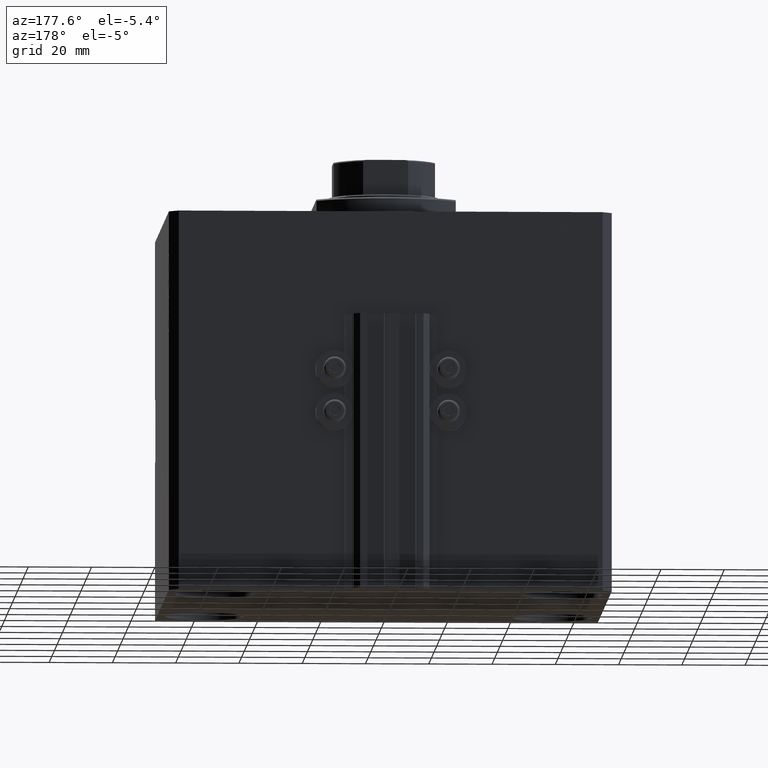
[diagram: clean part render]
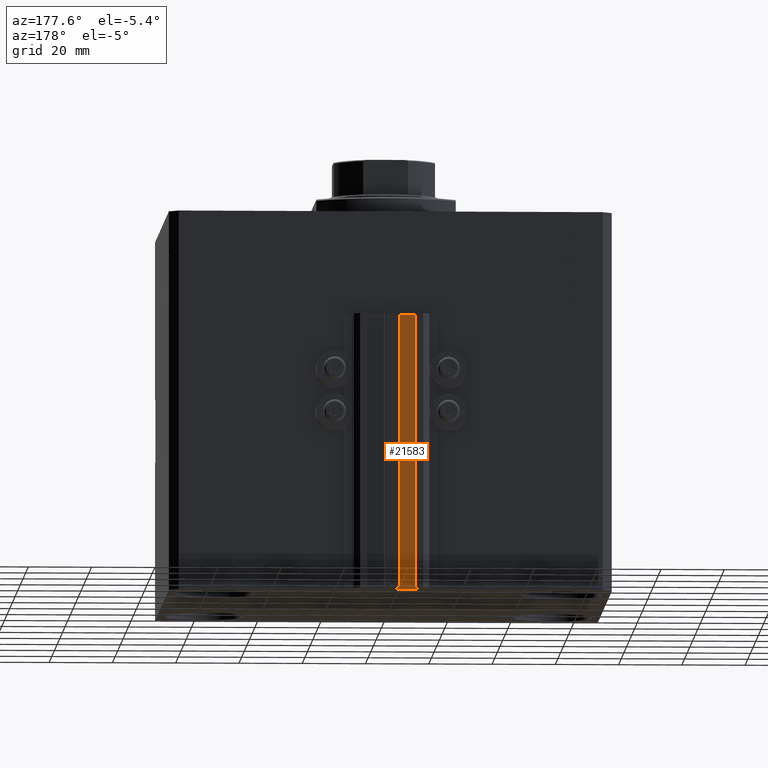
[diagram: same view with one face highlighted and labeled with its STEP entity id]
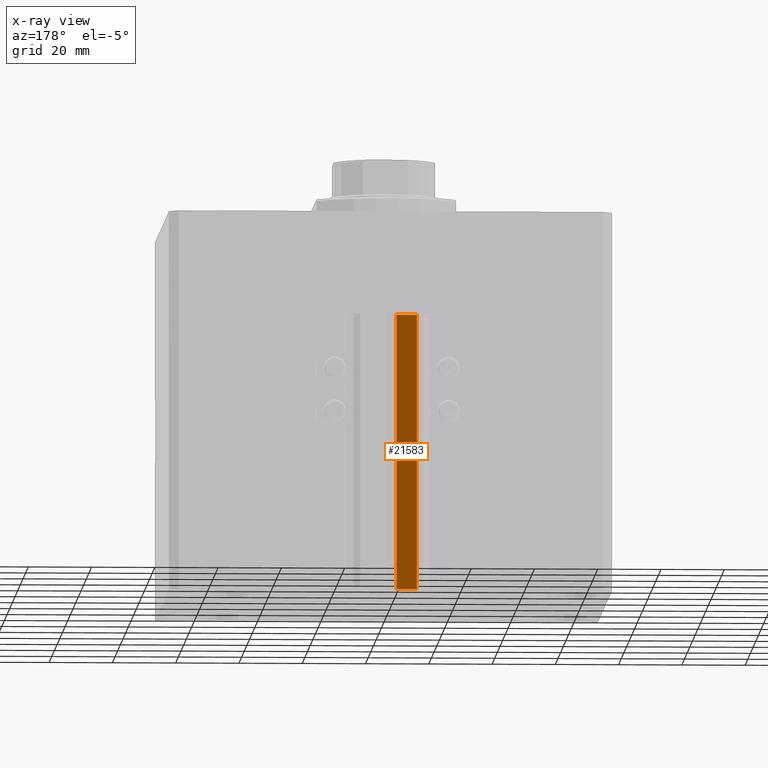
[diagram: x-ray of the same camera — body ghosted, the highlighted face saturated]
A machine part, auxiliary view. The second image highlights one B-rep face of the part: STEP entity #21583.
The next image is the same camera in x-ray: the body ghosted, the highlighted face saturated — about 0% of this face is hidden behind the body in this view.
In plain terms, the highlighted planar face has unit normal (0, 1, 0).
Its self-contained STEP definition (entity closure, byte-faithful):
#142 = CARTESIAN_POINT ( 'NONE',  ( -8.199999999999997513, 57.00000000000000000, -120.0000000000000000 ) ) ;
#2974 = LINE ( 'NONE', #10134, #27083 ) ;
#3598 = DIRECTION ( 'NONE',  ( 0.000000000000000000, 0.000000000000000000, 1.000000000000000000 ) ) ;
#3732 = CARTESIAN_POINT ( 'NONE',  ( -8.199999999999997513, 57.00000000000000000, -120.0000000000000000 ) ) ;
#4102 = VECTOR ( 'NONE', #47103, 1000.000000000000000 ) ;
#4155 = ORIENTED_EDGE ( 'NONE', *, *, #11206, .F. ) ;
#5126 = CARTESIAN_POINT ( 'NONE',  ( -8.199999999999997513, 57.00000000000000000, -33.00000000000000000 ) ) ;
#6572 = FACE_OUTER_BOUND ( 'NONE', #21330, .T. ) ;
#7296 = PLANE ( 'NONE',  #13121 ) ;
#7304 = EDGE_CURVE ( 'NONE', #41719, #17395, #28013, .T. ) ;
#8506 = LINE ( 'NONE', #142, #11771 ) ;
#9532 = ORIENTED_EDGE ( 'NONE', *, *, #7304, .T. ) ;
#9725 = DIRECTION ( 'NONE',  ( -1.000000000000000000, 0.000000000000000000, 0.000000000000000000 ) ) ;
#10134 = CARTESIAN_POINT ( 'NONE',  ( -1.800000000000000933, 57.00000000000000000, -33.00000000000000000 ) ) ;
#10524 = DIRECTION ( 'NONE',  ( 0.000000000000000000, 1.000000000000000000, -0.000000000000000000 ) ) ;
#11206 = EDGE_CURVE ( 'NONE', #41719, #18004, #39238, .T. ) ;
#11771 = VECTOR ( 'NONE', #15888, 1000.000000000000000 ) ;
#13121 = AXIS2_PLACEMENT_3D ( 'NONE', #25833, #10524, #3598 ) ;
#15888 = DIRECTION ( 'NONE',  ( 0.000000000000000000, 0.000000000000000000, 1.000000000000000000 ) ) ;
#16724 = CARTESIAN_POINT ( 'NONE',  ( -1.800000000000000933, 57.00000000000000000, -120.0000000000000000 ) ) ;
#17395 = VERTEX_POINT ( 'NONE', #3732 ) ;
#18004 = VERTEX_POINT ( 'NONE', #47347 ) ;
#21330 = EDGE_LOOP ( 'NONE', ( #46173, #4155, #9532, #47222 ) ) ;
#21583 = ADVANCED_FACE ( 'NONE', ( #6572 ), #7296, .T. ) ;
#25833 = CARTESIAN_POINT ( 'NONE',  ( -1.800000000000000933, 57.00000000000000000, -120.0000000000000000 ) ) ;
#27083 = VECTOR ( 'NONE', #28671, 1000.000000000000000 ) ;
#28013 = LINE ( 'NONE', #43798, #31813 ) ;
#28671 = DIRECTION ( 'NONE',  ( -1.000000000000000000, 0.000000000000000000, 0.000000000000000000 ) ) ;
#31813 = VECTOR ( 'NONE', #9725, 1000.000000000000000 ) ;
#32043 = EDGE_CURVE ( 'NONE', #17395, #39296, #8506, .T. ) ;
#36967 = CARTESIAN_POINT ( 'NONE',  ( -1.800000000000000933, 57.00000000000000000, -120.0000000000000000 ) ) ;
#39238 = LINE ( 'NONE', #16724, #4102 ) ;
#39296 = VERTEX_POINT ( 'NONE', #5126 ) ;
#41719 = VERTEX_POINT ( 'NONE', #36967 ) ;
#43798 = CARTESIAN_POINT ( 'NONE',  ( -1.800000000000000933, 57.00000000000000000, -120.0000000000000000 ) ) ;
#44573 = EDGE_CURVE ( 'NONE', #18004, #39296, #2974, .T. ) ;
#46173 = ORIENTED_EDGE ( 'NONE', *, *, #44573, .F. ) ;
#47103 = DIRECTION ( 'NONE',  ( 0.000000000000000000, 0.000000000000000000, 1.000000000000000000 ) ) ;
#47222 = ORIENTED_EDGE ( 'NONE', *, *, #32043, .T. ) ;
#47347 = CARTESIAN_POINT ( 'NONE',  ( -1.800000000000000933, 57.00000000000000000, -33.00000000000000000 ) ) ;